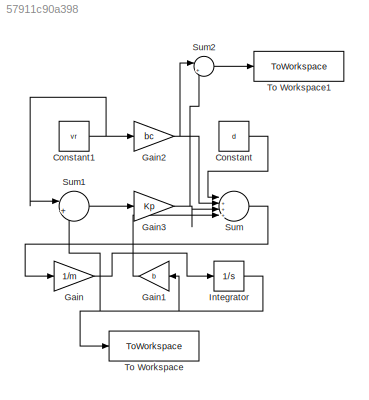
MODEL slx_57911c90a398
KIND model
CONFIG AbsTol = auto
CONFIG EnableMultiTasking = off
CONFIG FixedStep = auto
CONFIG MaxStep = auto
CONFIG MinStep = auto
CONFIG RelTol = 1e-3
CONFIG SampleTimeConstraint = Unconstrained
CONFIG SolverName = VariableStepAuto
CONFIG StartTime = 0.0
CONFIG StopTime = 100
BLOCK [Constant] Constant
  Value = d
BLOCK [Constant] Constant1
  Value = vr
BLOCK [Gain] Gain
  Gain = 1/m
BLOCK [Gain] Gain1
  Gain = b
  NameLocation = top
BLOCK [Gain] Gain2
  Gain = bc
BLOCK [Gain] Gain3
  Gain = Kp
BLOCK [Integrator] Integrator
  Ports = [1, 1]
BLOCK [Sum] Sum
  Inputs = |+++-
  Ports = [4, 1]
BLOCK [Sum] Sum1
  Inputs = |+-
  Ports = [2, 1]
BLOCK [Sum] Sum2
  Inputs = |++
  Ports = [2, 1]
BLOCK [ToWorkspace] To Workspace
  FixptAsFi = on
  MaxDataPoints = inf
  Ports = [1]
  SampleTime = -1
  SaveFormat = Structure With Time
  VariableName = v
BLOCK [ToWorkspace] To Workspace1
  FixptAsFi = on
  MaxDataPoints = inf
  Ports = [1]
  SampleTime = -1
  SaveFormat = Structure With Time
  VariableName = u
NET Constant1:1 -> Gain2:1, Sum1:1
LINE Constant:1 -> Sum:1
LINE Gain1:1 -> Sum:4
NET Gain2:1 -> Sum2:1, Sum:2
NET Gain3:1 -> Sum2:2, Sum:3
LINE Gain:1 -> Integrator:1
NET Integrator:1 -> Gain1:1, Sum1:2, To Workspace:1
LINE Sum1:1 -> Gain3:1
LINE Sum2:1 -> To Workspace1:1
LINE Sum:1 -> Gain:1
note: NET lines group one-source signal fan-out (src -> all destinations, sorted); 1:1 wires keep LINE
